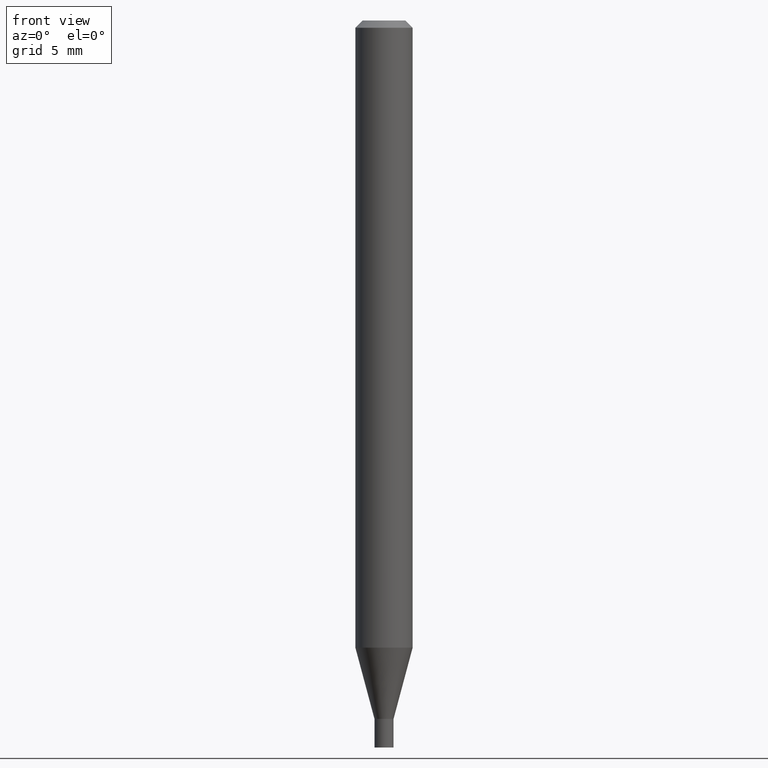
[diagram: clean part render]
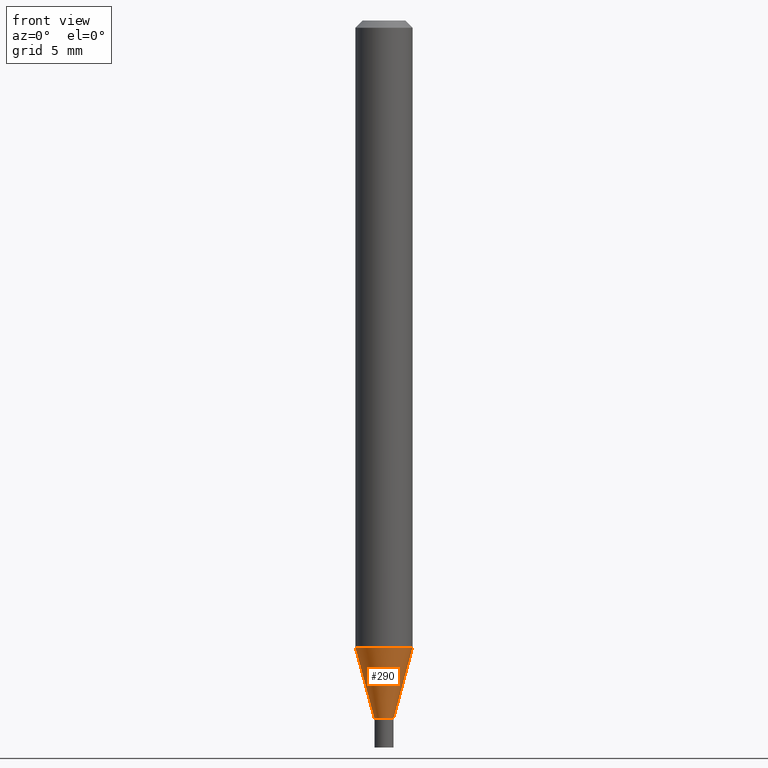
[diagram: same view with one face highlighted and labeled with its STEP entity id]
A machine part, front view. The second image highlights one B-rep face of the part: STEP entity #290.
In plain terms, the highlighted conical surface has half-angle 15 deg.
Its self-contained STEP definition (entity closure, byte-faithful):
#20 = AXIS2_PLACEMENT_3D ( 'NONE', #131, #413, #100 ) ;
#89 = CARTESIAN_POINT ( 'NONE',  ( 3.164543748503307071E-29, -4.518129781867094090E-15, -1.294043800722163962 ) ) ;
#95 = ORIENTED_EDGE ( 'NONE', *, *, #412, .T. ) ;
#97 = CARTESIAN_POINT ( 'NONE',  ( 0.01969999999999964835, -5.168439825889506203E-15, -1.440900000000000292 ) ) ;
#100 = DIRECTION ( 'NONE',  ( 1.000000000000000000, -6.982962677686255667E-15, 0.000000000000000000 ) ) ;
#102 = LINE ( 'NONE', #97, #441 ) ;
#108 = VERTEX_POINT ( 'NONE', #406 ) ;
#131 = CARTESIAN_POINT ( 'NONE',  ( 3.523676002832163563E-29, -5.030875461139089355E-15, -1.440900000000000292 ) ) ;
#142 = VERTEX_POINT ( 'NONE', #241 ) ;
#157 = DIRECTION ( 'NONE',  ( -2.445468806185136597E-29, 3.491481338843145583E-15, 1.000000000000000000 ) ) ;
#172 = CONICAL_SURFACE ( 'NONE', #20, 0.01969999999999964835, 0.2617993877991500740 ) ;
#192 = DIRECTION ( 'NONE',  ( 0.2588190451025213501, 1.565188264969621968E-15, 0.9659258262890682012 ) ) ;
#194 = CARTESIAN_POINT ( 'NONE',  ( 0.01969999999999964835, -5.168439825889506203E-15, -1.440900000000000292 ) ) ;
#196 = DIRECTION ( 'NONE',  ( -2.445468806185136597E-29, 3.491481338843145583E-15, 1.000000000000000000 ) ) ;
#200 = CARTESIAN_POINT ( 'NONE',  ( -0.01969999999999964835, -4.890898542194352413E-15, -1.440900000000000292 ) ) ;
#211 = ORIENTED_EDGE ( 'NONE', *, *, #311, .T. ) ;
#228 = ORIENTED_EDGE ( 'NONE', *, *, #255, .F. ) ;
#237 = VERTEX_POINT ( 'NONE', #277 ) ;
#241 = CARTESIAN_POINT ( 'NONE',  ( 0.05905000000000000526, -4.930473727984467433E-15, -1.294043800722163962 ) ) ;
#243 = VECTOR ( 'NONE', #341, 39.37007874015747433 ) ;
#255 = EDGE_CURVE ( 'NONE', #108, #142, #260, .T. ) ;
#256 = FACE_OUTER_BOUND ( 'NONE', #377, .T. ) ;
#260 = CIRCLE ( 'NONE', #306, 0.05904999999999999832 ) ;
#263 = CARTESIAN_POINT ( 'NONE',  ( 3.523676002832163563E-29, -5.030875461139089355E-15, -1.440900000000000292 ) ) ;
#273 = LINE ( 'NONE', #200, #243 ) ;
#277 = CARTESIAN_POINT ( 'NONE',  ( -0.01969999999999964835, -4.494726419297553505E-15, -1.440900000000000292 ) ) ;
#290 = ADVANCED_FACE ( 'NONE', ( #256 ), #172, .T. ) ;
#306 = AXIS2_PLACEMENT_3D ( 'NONE', #89, #157, #405 ) ;
#311 = EDGE_CURVE ( 'NONE', #422, #142, #102, .T. ) ;
#341 = DIRECTION ( 'NONE',  ( -0.2588190451025213501, 5.211531920934551042E-15, 0.9659258262890682012 ) ) ;
#342 = ORIENTED_EDGE ( 'NONE', *, *, #449, .F. ) ;
#366 = AXIS2_PLACEMENT_3D ( 'NONE', #263, #196, #370 ) ;
#370 = DIRECTION ( 'NONE',  ( 1.000000000000000000, -6.982962677686255667E-15, 0.000000000000000000 ) ) ;
#377 = EDGE_LOOP ( 'NONE', ( #342, #95, #211, #228 ) ) ;
#401 = CIRCLE ( 'NONE', #366, 0.01969999999999964835 ) ;
#405 = DIRECTION ( 'NONE',  ( 1.000000000000000000, -6.982962677686273021E-15, 0.000000000000000000 ) ) ;
#406 = CARTESIAN_POINT ( 'NONE',  ( -0.05905000000000000526, -4.098554296400754597E-15, -1.294043800722163962 ) ) ;
#412 = EDGE_CURVE ( 'NONE', #237, #422, #401, .T. ) ;
#413 = DIRECTION ( 'NONE',  ( -2.445468806185136597E-29, 3.491481338843145583E-15, 1.000000000000000000 ) ) ;
#422 = VERTEX_POINT ( 'NONE', #194 ) ;
#441 = VECTOR ( 'NONE', #192, 39.37007874015747433 ) ;
#449 = EDGE_CURVE ( 'NONE', #237, #108, #273, .T. ) ;